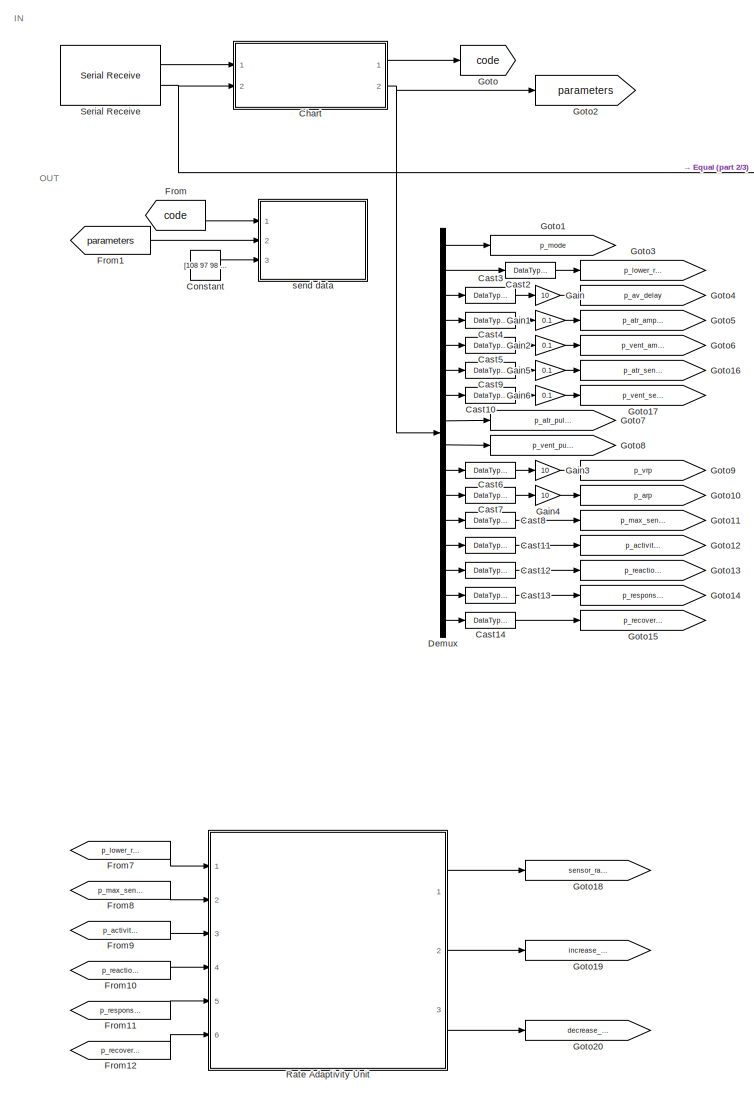
[diagram: root canvas - part 1/3, left side, full height]
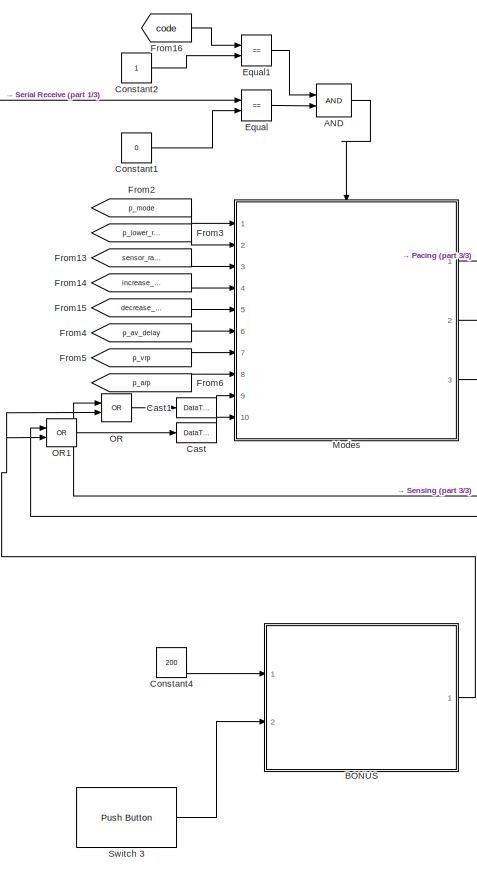
[diagram: root canvas - part 2/3, center side, full height]
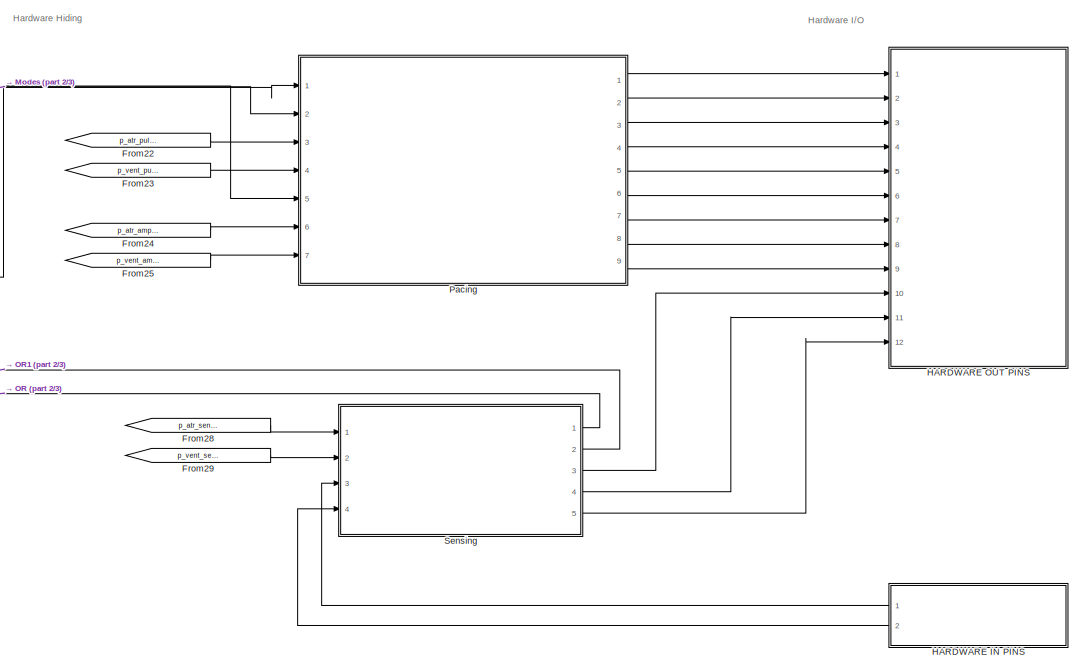
[diagram: root canvas - part 3/3, middle right region]
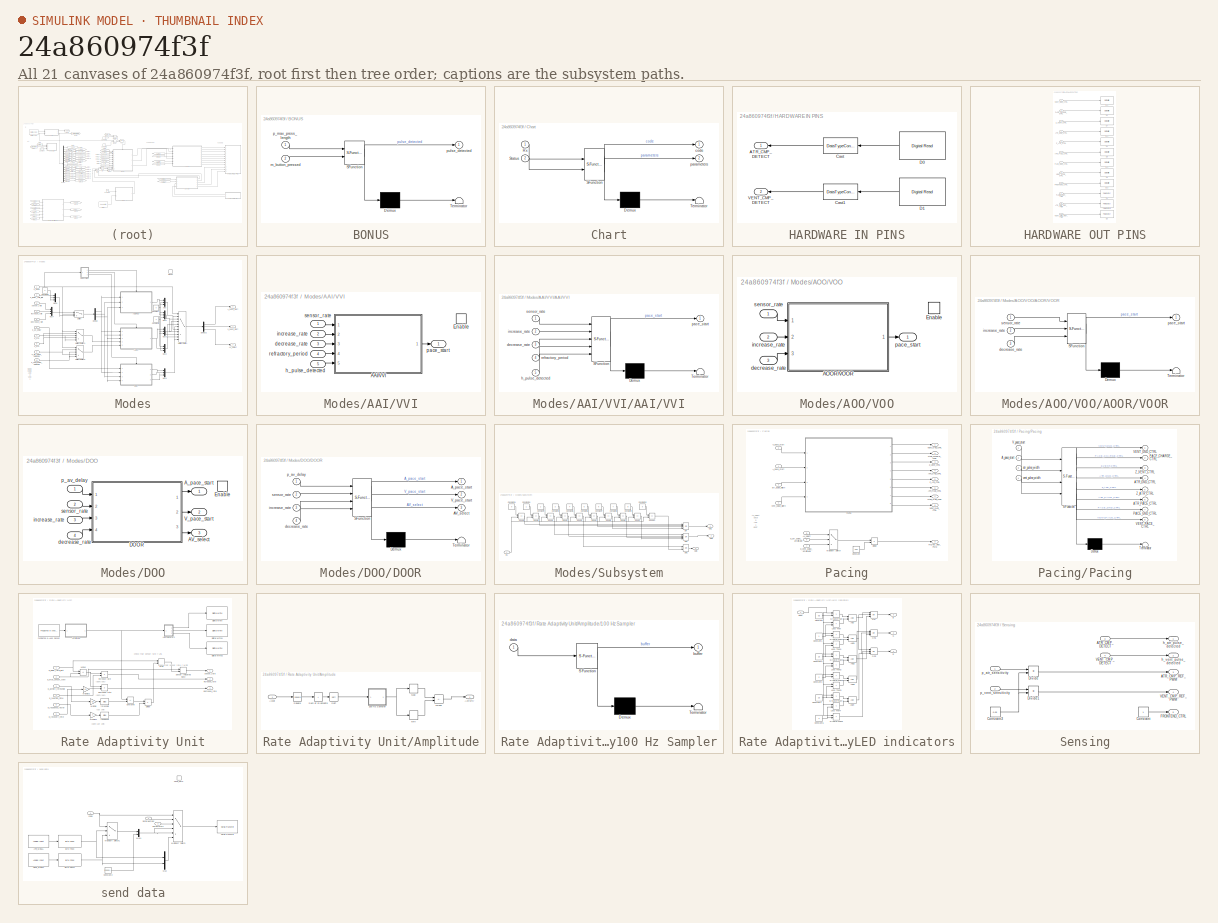
[diagram: thumbnail index - all 21 canvases of the model, root first then tree order]
MODEL slx_24a860974f3f
KIND model
CONFIG AbsTol = auto
CONFIG EnableMultiTasking = on
CONFIG FixedStep = 1e-3
CONFIG MaxStep = auto
CONFIG MinStep = auto
CONFIG RelTol = 1e-3
CONFIG SampleTimeConstraint = Unconstrained
CONFIG Solver = FixedStepAuto
CONFIG SolverName = FixedStepAuto
CONFIG StartTime = 0.0
CONFIG StopTime = 10.0
BLOCK [Logic] AND
  AllPortsSameDT = off
  OutDataTypeStr = boolean
  Ports = [2, 1]
BLOCK [SubSystem] BONUS
  ErrorFcn = Stateflow.Translate.translate
  PermitHierarchicalResolution = ExplicitOnly
  Ports = [2, 1]
  RequestExecContextInheritance = off
  SFBlockType = Chart
  TreatAsAtomicUnit = on
BLOCK [Demux] BONUS/ Demux 
  Outputs = 1
  Ports = [1, 1]
BLOCK [S-Function] BONUS/ SFunction 
  EnableBusSupport = on
  FunctionName = sf_sfun
  PortCounts = [2 2]
  Ports = [2, 2]
  SFcnIsStateOwnerBlock = off
  SFunctionDeploymentMode = off
  Tag = Stateflow S-Function 11
BLOCK [Terminator] BONUS/ Terminator 
BLOCK [Inport] BONUS/m_button_pressed
  Port = 2
BLOCK [Inport] BONUS/p_max_press_length
BLOCK [Outport] BONUS/pulse_detected
BLOCK [DataTypeConversion] Cast
  OutDataTypeStr = uint8
  RndMeth = Floor
  SaturateOnIntegerOverflow = off
BLOCK [DataTypeConversion] Cast1
  OutDataTypeStr = uint8
  RndMeth = Floor
  SaturateOnIntegerOverflow = off
BLOCK [DataTypeConversion] Cast10
  OutDataTypeStr = double
  RndMeth = Floor
  SaturateOnIntegerOverflow = off
BLOCK [DataTypeConversion] Cast11
  OutDataTypeStr = double
  RndMeth = Floor
  SaturateOnIntegerOverflow = off
BLOCK [DataTypeConversion] Cast12
  OutDataTypeStr = double
  RndMeth = Floor
  SaturateOnIntegerOverflow = off
BLOCK [DataTypeConversion] Cast13
  OutDataTypeStr = double
  RndMeth = Floor
  SaturateOnIntegerOverflow = off
BLOCK [DataTypeConversion] Cast14
  OutDataTypeStr = double
  RndMeth = Floor
  SaturateOnIntegerOverflow = off
BLOCK [DataTypeConversion] Cast2
  OutDataTypeStr = double
  RndMeth = Floor
  SaturateOnIntegerOverflow = off
BLOCK [DataTypeConversion] Cast3
  OutDataTypeStr = double
  RndMeth = Floor
  SaturateOnIntegerOverflow = off
BLOCK [DataTypeConversion] Cast4
  OutDataTypeStr = double
  RndMeth = Floor
  SaturateOnIntegerOverflow = off
BLOCK [DataTypeConversion] Cast5
  OutDataTypeStr = double
  RndMeth = Floor
  SaturateOnIntegerOverflow = off
BLOCK [DataTypeConversion] Cast6
  OutDataTypeStr = double
  RndMeth = Floor
  SaturateOnIntegerOverflow = off
BLOCK [DataTypeConversion] Cast7
  OutDataTypeStr = double
  RndMeth = Floor
  SaturateOnIntegerOverflow = off
BLOCK [DataTypeConversion] Cast8
  OutDataTypeStr = double
  RndMeth = Floor
  SaturateOnIntegerOverflow = off
BLOCK [DataTypeConversion] Cast9
  OutDataTypeStr = double
  RndMeth = Floor
  SaturateOnIntegerOverflow = off
BLOCK [SubSystem] Chart
  ErrorFcn = Stateflow.Translate.translate
  PermitHierarchicalResolution = ExplicitOnly
  Ports = [2, 2]
  RequestExecContextInheritance = off
  SFBlockType = Chart
  TreatAsAtomicUnit = on
BLOCK [Demux] Chart/ Demux 
  Outputs = 1
  Ports = [1, 1]
BLOCK [S-Function] Chart/ SFunction 
  EnableBusSupport = on
  FunctionName = sf_sfun
  PortCounts = [2 3]
  Ports = [2, 3]
  SFcnIsStateOwnerBlock = off
  SFunctionDeploymentMode = off
  Tag = Stateflow S-Function 8
BLOCK [Terminator] Chart/ Terminator 
BLOCK [Inport] Chart/Rx
BLOCK [Inport] Chart/Status
  Port = 2
BLOCK [Outport] Chart/code
BLOCK [Outport] Chart/parameters
  Port = 2
BLOCK [Constant] Constant
  OutDataTypeStr = uint8
  Value = [108 97 98 49 45 103 114 111 117 112 56 45 49 48 48 37]
BLOCK [Constant] Constant1
  OutDataTypeStr = uint8
  Value = 0
BLOCK [Constant] Constant2
  OutDataTypeStr = uint8
BLOCK [Constant] Constant4
  Value = 200
BLOCK [Demux] Demux
  Outputs = 16
  Ports = [1, 16]
BLOCK [RelationalOperator] Equal
  InputSameDT = off
  Operator = ==
  OutDataTypeStr = boolean
  Ports = [2, 1]
  RndMeth = Simplest
BLOCK [RelationalOperator] Equal1
  InputSameDT = off
  Operator = ==
  OutDataTypeStr = boolean
  Ports = [2, 1]
  RndMeth = Simplest
BLOCK [From] From
  GotoTag = code
BLOCK [From] From1
  GotoTag = parameters
BLOCK [From] From10
  GotoTag = p_reaction_time
BLOCK [From] From11
  GotoTag = p_response_factor
BLOCK [From] From12
  GotoTag = p_recovery_time
BLOCK [From] From13
  GotoTag = sensor_rate
BLOCK [From] From14
  GotoTag = increase_rate
BLOCK [From] From15
  GotoTag = decrease_rate
BLOCK [From] From16
  GotoTag = code
BLOCK [From] From2
  GotoTag = p_mode
BLOCK [From] From22
  GotoTag = p_atr_pulse_width
BLOCK [From] From23
  GotoTag = p_vent_pulse_width
BLOCK [From] From24
  GotoTag = p_atr_amplitude
BLOCK [From] From25
  GotoTag = p_vent_amplitude
BLOCK [From] From28
  GotoTag = p_atr_sensitivity
BLOCK [From] From29
  GotoTag = p_vent_sensitivity
BLOCK [From] From3
  GotoTag = p_lower_rate_limit
BLOCK [From] From4
  GotoTag = p_av_delay
BLOCK [From] From5
  GotoTag = p_vrp
BLOCK [From] From6
  GotoTag = p_arp
BLOCK [From] From7
  GotoTag = p_lower_rate_limit
BLOCK [From] From8
  GotoTag = p_max_sensor_rate
BLOCK [From] From9
  GotoTag = p_activity_threshold
BLOCK [Gain] Gain
  Gain = 10
BLOCK [Gain] Gain1
  Gain = 0.1
BLOCK [Gain] Gain2
  Gain = 0.1
BLOCK [Gain] Gain3
  Gain = 10
BLOCK [Gain] Gain4
  Gain = 10
BLOCK [Gain] Gain5
  Gain = 0.1
BLOCK [Gain] Gain6
  Gain = 0.1
BLOCK [Goto] Goto
  GotoTag = code
BLOCK [Goto] Goto1
  GotoTag = p_mode
BLOCK [Goto] Goto10
  GotoTag = p_arp
BLOCK [Goto] Goto11
  GotoTag = p_max_sensor_rate
BLOCK [Goto] Goto12
  GotoTag = p_activity_threshold
BLOCK [Goto] Goto13
  GotoTag = p_reaction_time
BLOCK [Goto] Goto14
  GotoTag = p_response_factor
BLOCK [Goto] Goto15
  GotoTag = p_recovery_time
BLOCK [Goto] Goto16
  GotoTag = p_atr_sensitivity
BLOCK [Goto] Goto17
  GotoTag = p_vent_sensitivity
BLOCK [Goto] Goto18
  GotoTag = sensor_rate
BLOCK [Goto] Goto19
  GotoTag = increase_rate
BLOCK [Goto] Goto2
  GotoTag = parameters
BLOCK [Goto] Goto20
  GotoTag = decrease_rate
BLOCK [Goto] Goto3
  GotoTag = p_lower_rate_limit
BLOCK [Goto] Goto4
  GotoTag = p_av_delay
BLOCK [Goto] Goto5
  GotoTag = p_atr_amplitude
BLOCK [Goto] Goto6
  GotoTag = p_vent_amplitude
BLOCK [Goto] Goto7
  GotoTag = p_atr_pulse_width
BLOCK [Goto] Goto8
  GotoTag = p_vent_pulse_width
BLOCK [Goto] Goto9
  GotoTag = p_vrp
BLOCK [SubSystem] HARDWARE IN PINS
  Ports = [0, 2]
  RequestExecContextInheritance = off
BLOCK [Outport] HARDWARE IN PINS/ATR_CMP_DETECT
BLOCK [DataTypeConversion] HARDWARE IN PINS/Cast
  OutDataTypeStr = uint8
  RndMeth = Floor
  SaturateOnIntegerOverflow = off
BLOCK [DataTypeConversion] HARDWARE IN PINS/Cast1
  OutDataTypeStr = uint8
  RndMeth = Floor
  SaturateOnIntegerOverflow = off
BLOCK [Reference] HARDWARE IN PINS/D0  REF=frdmk64flib/Digital Read
  Ports = [0, 1]
  SourceBlock = frdmk64flib/Digital Read
  SourceProductBaseCode = EC_FRDM_K64F
  SourceType = freedomk64f.DigitalRead
BLOCK [Reference] HARDWARE IN PINS/D1  REF=frdmk64flib/Digital Read
  Ports = [0, 1]
  SourceBlock = frdmk64flib/Digital Read
  SourceProductBaseCode = EC_FRDM_K64F
  SourceType = freedomk64f.DigitalRead
BLOCK [Outport] HARDWARE IN PINS/VENT_CMP_DETECT
  Port = 2
BLOCK [SubSystem] HARDWARE OUT PINS
  Ports = [12]
  RequestExecContextInheritance = off
BLOCK [Inport] HARDWARE OUT PINS/ATR_CMP_REF_PWM
  Port = 10
BLOCK [Inport] HARDWARE OUT PINS/ATR_GND_CTRL
  Port = 4
BLOCK [Inport] HARDWARE OUT PINS/ATR_PACE_CTRL
  Port = 6
BLOCK [Reference] HARDWARE OUT PINS/D10  REF=frdmk64flib/Digital Write
  Ports = [1]
  SourceBlock = frdmk64flib/Digital Write
  SourceProductBaseCode = EC_FRDM_K64F
  SourceType = freedomk64f.DigitalWrite
BLOCK [Reference] HARDWARE OUT PINS/D11  REF=frdmk64flib/Digital Write
  Ports = [1]
  SourceBlock = frdmk64flib/Digital Write
  SourceProductBaseCode = EC_FRDM_K64F
  SourceType = freedomk64f.DigitalWrite
BLOCK [Reference] HARDWARE OUT PINS/D12  REF=frdmk64flib/Digital Write
  Ports = [1]
  SourceBlock = frdmk64flib/Digital Write
  SourceProductBaseCode = EC_FRDM_K64F
  SourceType = freedomk64f.DigitalWrite
BLOCK [Reference] HARDWARE OUT PINS/D13  REF=frdmk64flib/Digital Write
  Ports = [1]
  SourceBlock = frdmk64flib/Digital Write
  SourceProductBaseCode = EC_FRDM_K64F
  SourceType = freedomk64f.DigitalWrite
BLOCK [Reference] HARDWARE OUT PINS/D2  REF=frdmk64flib/Digital Write
  Ports = [1]
  SourceBlock = frdmk64flib/Digital Write
  SourceProductBaseCode = EC_FRDM_K64F
  SourceType = freedomk64f.DigitalWrite
BLOCK [Reference] HARDWARE OUT PINS/D3  REF=frdmk64flib/PWM Output
  Ports = [1]
  SourceBlock = frdmk64flib/PWM Output
  SourceProductBaseCode = EC_FRDM_K64F
  SourceType = freedomk64f.PWMOutput
BLOCK [Reference] HARDWARE OUT PINS/D4  REF=frdmk64flib/Digital Write
  Ports = [1]
  SourceBlock = frdmk64flib/Digital Write
  SourceProductBaseCode = EC_FRDM_K64F
  SourceType = freedomk64f.DigitalWrite
BLOCK [Reference] HARDWARE OUT PINS/D5  REF=frdmk64flib/PWM Output
  Ports = [1]
  SourceBlock = frdmk64flib/PWM Output
  SourceProductBaseCode = EC_FRDM_K64F
  SourceType = freedomk64f.PWMOutput
BLOCK [Reference] HARDWARE OUT PINS/D7  REF=frdmk64flib/Digital Write
  Ports = [1]
  SourceBlock = frdmk64flib/Digital Write
  SourceProductBaseCode = EC_FRDM_K64F
  SourceType = freedomk64f.DigitalWrite
BLOCK [Reference] HARDWARE OUT PINS/D8  REF=frdmk64flib/Digital Write
  Ports = [1]
  SourceBlock = frdmk64flib/Digital Write
  SourceProductBaseCode = EC_FRDM_K64F
  SourceType = freedomk64f.DigitalWrite
BLOCK [Reference] HARDWARE OUT PINS/D9  REF=frdmk64flib/Digital Write
  Ports = [1]
  SourceBlock = frdmk64flib/Digital Write
  SourceProductBaseCode = EC_FRDM_K64F
  SourceType = freedomk64f.DigitalWrite
BLOCK [Inport] HARDWARE OUT PINS/FRONTEND_CTRL
  Port = 12
BLOCK [Inport] HARDWARE OUT PINS/PACE_CHARGE_CTRL
  Port = 2
BLOCK [Inport] HARDWARE OUT PINS/PACE_GND_CTRL
  Port = 7
BLOCK [Inport] HARDWARE OUT PINS/PACING_REF_PWM
  Port = 9
BLOCK [Reference] HARDWARE OUT PINS/PWM Output1  REF=frdmk64flib/PWM Output
  Ports = [1]
  SourceBlock = frdmk64flib/PWM Output
  SourceProductBaseCode = EC_FRDM_K64F
  SourceType = freedomk64f.PWMOutput
BLOCK [Inport] HARDWARE OUT PINS/VENT_CMP_REF_PWM
  Port = 11
BLOCK [Inport] HARDWARE OUT PINS/VENT_GND_CTRL
BLOCK [Inport] HARDWARE OUT PINS/VENT_PACE_CTRL
  Port = 8
BLOCK [Inport] HARDWARE OUT PINS/Z_ATR_CTRL
  Port = 5
BLOCK [Inport] HARDWARE OUT PINS/Z_VENT_CTRL
  Port = 3
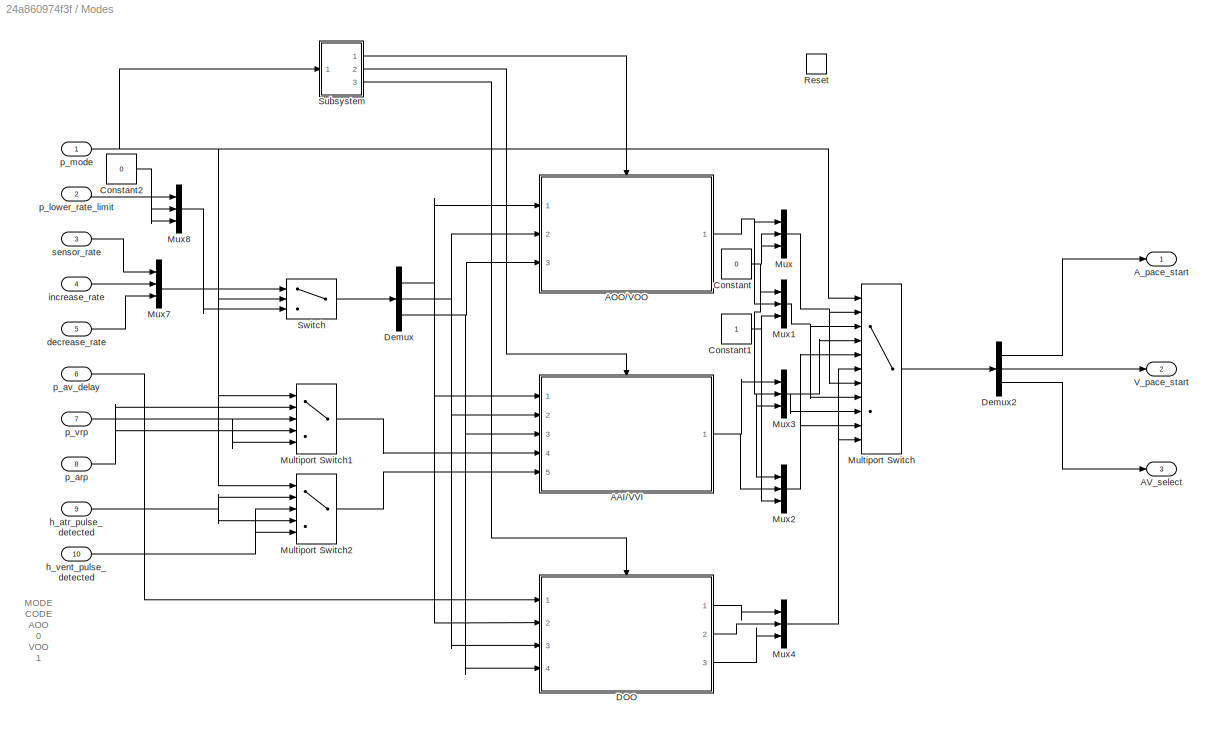
BLOCK [SubSystem] Modes
  Ports = [10, 3, 0, 0, 0, 0, 0, 0, 1]
  RequestExecContextInheritance = off
BLOCK [SubSystem] Modes/AAI//VVI
  Ports = [5, 1, 1]
  RequestExecContextInheritance = off
BLOCK [SubSystem] Modes/AAI//VVI/AAI//VVI
  ErrorFcn = Stateflow.Translate.translate
  PermitHierarchicalResolution = ExplicitOnly
  Ports = [5, 1]
  RequestExecContextInheritance = off
  SFBlockType = Chart
  TreatAsAtomicUnit = on
BLOCK [Demux] Modes/AAI//VVI/AAI//VVI/ Demux 
  Outputs = 1
  Ports = [1, 1]
BLOCK [S-Function] Modes/AAI//VVI/AAI//VVI/ SFunction 
  EnableBusSupport = on
  FunctionName = sf_sfun
  PortCounts = [5 2]
  Ports = [5, 2]
  SFcnIsStateOwnerBlock = off
  SFunctionDeploymentMode = off
  Tag = Stateflow S-Function 5
BLOCK [Terminator] Modes/AAI//VVI/AAI//VVI/ Terminator 
BLOCK [Inport] Modes/AAI//VVI/AAI//VVI/decrease_rate
  Port = 3
BLOCK [Inport] Modes/AAI//VVI/AAI//VVI/h_pulse_detected
  Port = 5
BLOCK [Inport] Modes/AAI//VVI/AAI//VVI/increase_rate
  Port = 2
BLOCK [Outport] Modes/AAI//VVI/AAI//VVI/pace_start
BLOCK [Inport] Modes/AAI//VVI/AAI//VVI/refractory_period
  Port = 4
BLOCK [Inport] Modes/AAI//VVI/AAI//VVI/sensor_rate
BLOCK [EnablePort] Modes/AAI//VVI/Enable
  Ports = []
  StatesWhenEnabling = reset
BLOCK [Inport] Modes/AAI//VVI/decrease_rate
  Port = 3
BLOCK [Inport] Modes/AAI//VVI/h_pulse_detected
  Port = 5
BLOCK [Inport] Modes/AAI//VVI/increase_rate
  Port = 2
BLOCK [Outport] Modes/AAI//VVI/pace_start
BLOCK [Inport] Modes/AAI//VVI/refractory_period
  Port = 4
BLOCK [Inport] Modes/AAI//VVI/sensor_rate
BLOCK [SubSystem] Modes/AOO//VOO
  Ports = [3, 1, 1]
  RequestExecContextInheritance = off
BLOCK [SubSystem] Modes/AOO//VOO/AOOR//VOOR
  ErrorFcn = Stateflow.Translate.translate
  PermitHierarchicalResolution = ExplicitOnly
  Ports = [3, 1]
  RequestExecContextInheritance = off
  SFBlockType = Chart
  TreatAsAtomicUnit = on
BLOCK [Demux] Modes/AOO//VOO/AOOR//VOOR/ Demux 
  Outputs = 1
  Ports = [1, 1]
BLOCK [S-Function] Modes/AOO//VOO/AOOR//VOOR/ SFunction 
  EnableBusSupport = on
  FunctionName = sf_sfun
  PortCounts = [3 2]
  Ports = [3, 2]
  SFcnIsStateOwnerBlock = off
  SFunctionDeploymentMode = off
  Tag = Stateflow S-Function 4
BLOCK [Terminator] Modes/AOO//VOO/AOOR//VOOR/ Terminator 
BLOCK [Inport] Modes/AOO//VOO/AOOR//VOOR/decrease_rate
  Port = 3
BLOCK [Inport] Modes/AOO//VOO/AOOR//VOOR/increase_rate
  Port = 2
BLOCK [Outport] Modes/AOO//VOO/AOOR//VOOR/pace_start
BLOCK [Inport] Modes/AOO//VOO/AOOR//VOOR/sensor_rate
BLOCK [EnablePort] Modes/AOO//VOO/Enable
  Ports = []
  StatesWhenEnabling = reset
BLOCK [Inport] Modes/AOO//VOO/decrease_rate
  Port = 3
BLOCK [Inport] Modes/AOO//VOO/increase_rate
  Port = 2
BLOCK [Outport] Modes/AOO//VOO/pace_start
BLOCK [Inport] Modes/AOO//VOO/sensor_rate
BLOCK [Outport] Modes/AV_select
  Port = 3
BLOCK [Outport] Modes/A_pace_start
BLOCK [Constant] Modes/Constant
  OutDataTypeStr = boolean
  Value = 0
BLOCK [Constant] Modes/Constant1
  OutDataTypeStr = boolean
BLOCK [Constant] Modes/Constant2
  OutDataTypeStr = double
  Value = 0
BLOCK [SubSystem] Modes/DOO
  Ports = [4, 3, 1]
  RequestExecContextInheritance = off
BLOCK [Outport] Modes/DOO/AV_select
  Port = 3
BLOCK [Outport] Modes/DOO/A_pace_start
BLOCK [SubSystem] Modes/DOO/DOOR
  ErrorFcn = Stateflow.Translate.translate
  PermitHierarchicalResolution = ExplicitOnly
  Ports = [4, 3]
  RequestExecContextInheritance = off
  SFBlockType = Chart
  TreatAsAtomicUnit = on
BLOCK [Demux] Modes/DOO/DOOR/ Demux 
  Outputs = 1
  Ports = [1, 1]
BLOCK [S-Function] Modes/DOO/DOOR/ SFunction 
  EnableBusSupport = on
  FunctionName = sf_sfun
  PortCounts = [4 4]
  Ports = [4, 4]
  SFcnIsStateOwnerBlock = off
  SFunctionDeploymentMode = off
  Tag = Stateflow S-Function 6
BLOCK [Terminator] Modes/DOO/DOOR/ Terminator 
BLOCK [Outport] Modes/DOO/DOOR/AV_select
  Port = 3
BLOCK [Outport] Modes/DOO/DOOR/A_pace_start
BLOCK [Outport] Modes/DOO/DOOR/V_pace_start
  Port = 2
BLOCK [Inport] Modes/DOO/DOOR/decrease_rate
  Port = 4
BLOCK [Inport] Modes/DOO/DOOR/increase_rate
  Port = 3
BLOCK [Inport] Modes/DOO/DOOR/p_av_delay
BLOCK [Inport] Modes/DOO/DOOR/sensor_rate
  Port = 2
BLOCK [EnablePort] Modes/DOO/Enable
  Ports = []
  StatesWhenEnabling = reset
BLOCK [Outport] Modes/DOO/V_pace_start
  Port = 2
BLOCK [Inport] Modes/DOO/decrease_rate
  Port = 4
BLOCK [Inport] Modes/DOO/increase_rate
  Port = 3
BLOCK [Inport] Modes/DOO/p_av_delay
BLOCK [Inport] Modes/DOO/sensor_rate
  Port = 2
BLOCK [Demux] Modes/Demux
  Outputs = 3
  Ports = [1, 3]
BLOCK [Demux] Modes/Demux2
  Outputs = 3
  Ports = [1, 3]
BLOCK [MultiPortSwitch] Modes/Multiport Switch
  DataPortOrder = Zero-based contiguous
  InputSameDT = off
  Inputs = 10
  Ports = [11, 1]
  SaturateOnIntegerOverflow = off
  zeroidx = on
BLOCK [MultiPortSwitch] Modes/Multiport Switch1
  DataPortIndices = {2,3,7,8}
  DataPortOrder = Specify indices
  DiagnosticForDefault = None
  InputSameDT = off
  Inputs = 10
  Ports = [5, 1]
  SaturateOnIntegerOverflow = off
BLOCK [MultiPortSwitch] Modes/Multiport Switch2
  DataPortIndices = {2,3,7,8}
  DataPortOrder = Specify indices
  DiagnosticForDefault = None
  InputSameDT = off
  Inputs = 10
  Ports = [5, 1]
  SaturateOnIntegerOverflow = off
BLOCK [Mux] Modes/Mux
  DisplayOption = bar
  Inputs = 3
  Ports = [3, 1]
BLOCK [Mux] Modes/Mux1
  DisplayOption = bar
  Inputs = 3
  Ports = [3, 1]
BLOCK [Mux] Modes/Mux2
  DisplayOption = bar
  Inputs = 3
  Ports = [3, 1]
BLOCK [Mux] Modes/Mux3
  DisplayOption = bar
  Inputs = 3
  Ports = [3, 1]
BLOCK [Mux] Modes/Mux4
  DisplayOption = bar
  Inputs = 3
  Ports = [3, 1]
BLOCK [Mux] Modes/Mux7
  DisplayOption = bar
  Inputs = 3
  Ports = [3, 1]
BLOCK [Mux] Modes/Mux8
  DisplayOption = bar
  Inputs = 3
  Ports = [3, 1]
BLOCK [ResetPort] Modes/Reset
  DisableCoverage = on
BLOCK [SubSystem] Modes/Subsystem
  Ports = [1, 3]
  RequestExecContextInheritance = off
BLOCK [Constant] Modes/Subsystem/Constant10
  OutDataTypeStr = uint8
BLOCK [Constant] Modes/Subsystem/Constant11
  OutDataTypeStr = uint8
  Value = 0
BLOCK [Constant] Modes/Subsystem/Constant12
  OutDataTypeStr = uint8
  Value = 9
BLOCK [Constant] Modes/Subsystem/Constant3
  OutDataTypeStr = uint8
  Value = 3
BLOCK [Constant] Modes/Subsystem/Constant4
  OutDataTypeStr = uint8
  Value = 2
BLOCK [Constant] Modes/Subsystem/Constant5
  OutDataTypeStr = uint8
  Value = 4
BLOCK [Constant] Modes/Subsystem/Constant6
  OutDataTypeStr = uint8
  Value = 5
BLOCK [Constant] Modes/Subsystem/Constant7
  OutDataTypeStr = uint8
  Value = 6
BLOCK [Constant] Modes/Subsystem/Constant8
  OutDataTypeStr = uint8
  Value = 7
BLOCK [Constant] Modes/Subsystem/Constant9
  OutDataTypeStr = uint8
  Value = 8
BLOCK [RelationalOperator] Modes/Subsystem/Equal1
  InputSameDT = off
  Operator = ==
  OutDataTypeStr = boolean
  Ports = [2, 1]
  RndMeth = Simplest
BLOCK [RelationalOperator] Modes/Subsystem/Equal10
  InputSameDT = off
  Operator = ==
  OutDataTypeStr = boolean
  Ports = [2, 1]
  RndMeth = Simplest
BLOCK [RelationalOperator] Modes/Subsystem/Equal2
  InputSameDT = off
  Operator = ==
  OutDataTypeStr = boolean
  Ports = [2, 1]
  RndMeth = Simplest
BLOCK [RelationalOperator] Modes/Subsystem/Equal3
  InputSameDT = off
  Operator = ==
  OutDataTypeStr = boolean
  Ports = [2, 1]
  RndMeth = Simplest
BLOCK [RelationalOperator] Modes/Subsystem/Equal4
  InputSameDT = off
  Operator = ==
  OutDataTypeStr = boolean
  Ports = [2, 1]
  RndMeth = Simplest
BLOCK [RelationalOperator] Modes/Subsystem/Equal5
  InputSameDT = off
  Operator = ==
  OutDataTypeStr = boolean
  Ports = [2, 1]
  RndMeth = Simplest
BLOCK [RelationalOperator] Modes/Subsystem/Equal6
  InputSameDT = off
  Operator = ==
  OutDataTypeStr = boolean
  Ports = [2, 1]
  RndMeth = Simplest
BLOCK [RelationalOperator] Modes/Subsystem/Equal7
  InputSameDT = off
  Operator = ==
  OutDataTypeStr = boolean
  Ports = [2, 1]
  RndMeth = Simplest
BLOCK [RelationalOperator] Modes/Subsystem/Equal8
  InputSameDT = off
  Operator = ==
  OutDataTypeStr = boolean
  Ports = [2, 1]
  RndMeth = Simplest
BLOCK [RelationalOperator] Modes/Subsystem/Equal9
  InputSameDT = off
  Operator = ==
  OutDataTypeStr = boolean
  Ports = [2, 1]
  RndMeth = Simplest
BLOCK [Inport] Modes/Subsystem/In1
BLOCK [Logic] Modes/Subsystem/OR
  AllPortsSameDT = off
  Inputs = 4
  Operator = OR
  OutDataTypeStr = boolean
  Ports = [4, 1]
BLOCK [Logic] Modes/Subsystem/OR1
  AllPortsSameDT = off
  Inputs = 4
  Operator = OR
  OutDataTypeStr = boolean
  Ports = [4, 1]
BLOCK [Logic] Modes/Subsystem/OR2
  AllPortsSameDT = off
  Operator = OR
  OutDataTypeStr = boolean
  Ports = [2, 1]
BLOCK [Outport] Modes/Subsystem/Out1
BLOCK [Outport] Modes/Subsystem/Out2
  Port = 2
BLOCK [Outport] Modes/Subsystem/Out3
  Port = 3
BLOCK [Switch] Modes/Switch
  Criteria = u2 > Threshold
  InputSameDT = off
  SaturateOnIntegerOverflow = off
  Threshold = 4
BLOCK [Outport] Modes/V_pace_start
  Port = 2
BLOCK [Inport] Modes/decrease_rate
  Port = 5
BLOCK [Inport] Modes/h_atr_pulse_detected
  Port = 9
BLOCK [Inport] Modes/h_vent_pulse_detected
  Port = 10
BLOCK [Inport] Modes/increase_rate
  Port = 4
BLOCK [Inport] Modes/p_arp
  Port = 8
BLOCK [Inport] Modes/p_av_delay
  Port = 6
BLOCK [Inport] Modes/p_lower_rate_limit
  Port = 2
BLOCK [Inport] Modes/p_mode
  OutDataTypeStr = uint8
BLOCK [Inport] Modes/p_vrp
  Port = 7
BLOCK [Inport] Modes/sensor_rate
  Port = 3
BLOCK [Logic] OR
  AllPortsSameDT = off
  IconShape = distinctive
  Operator = OR
  OutDataTypeStr = boolean
  Ports = [2, 1]
BLOCK [Logic] OR1
  AllPortsSameDT = off
  IconShape = distinctive
  Operator = OR
  OutDataTypeStr = boolean
  Ports = [2, 1]
BLOCK [SubSystem] Pacing
  Ports = [7, 9]
  RequestExecContextInheritance = off
BLOCK [Outport] Pacing/ATR_GND_CTRL
  Port = 4
BLOCK [Outport] Pacing/ATR_PACE_CTRL
  Port = 6
BLOCK [Inport] Pacing/AV_select
  Port = 5
BLOCK [Inport] Pacing/A_pace_start
BLOCK [Constant] Pacing/Constant
  Value = 0.05
BLOCK [Product] Pacing/Divide
  Inputs = */
  Ports = [2, 1]
BLOCK [MultiPortSwitch] Pacing/Multiport Switch
  DataPortOrder = Zero-based contiguous
  DiagnosticForDefault = None
  InputSameDT = off
  Inputs = 2
  Ports = [3, 1]
  SaturateOnIntegerOverflow = off
  zeroidx = on
BLOCK [Outport] Pacing/PACE_CHARGE_CTRL
  Port = 2
BLOCK [Outport] Pacing/PACE_GND_CTRL
  Port = 7
BLOCK [Outport] Pacing/PACING_REF_PWM
  Port = 9
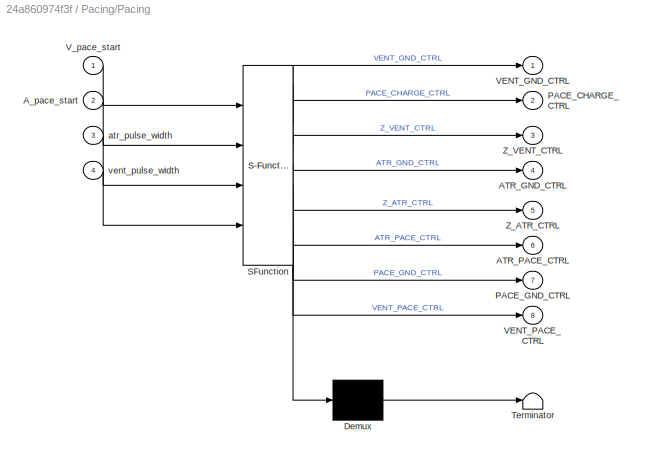
BLOCK [SubSystem] Pacing/Pacing
  ErrorFcn = Stateflow.Translate.translate
  PermitHierarchicalResolution = ExplicitOnly
  Ports = [4, 8]
  RequestExecContextInheritance = off
  SFBlockType = Chart
  TreatAsAtomicUnit = on
BLOCK [Demux] Pacing/Pacing/ Demux 
  Outputs = 1
  Ports = [1, 1]
BLOCK [S-Function] Pacing/Pacing/ SFunction 
  EnableBusSupport = on
  FunctionName = sf_sfun
  PortCounts = [4 9]
  Ports = [4, 9]
  SFcnIsStateOwnerBlock = off
  SFunctionDeploymentMode = off
  Tag = Stateflow S-Function 12
BLOCK [Terminator] Pacing/Pacing/ Terminator 
BLOCK [Outport] Pacing/Pacing/ATR_GND_CTRL
  Port = 4
BLOCK [Outport] Pacing/Pacing/ATR_PACE_CTRL
  Port = 6
BLOCK [Inport] Pacing/Pacing/A_pace_start
  Port = 2
BLOCK [Outport] Pacing/Pacing/PACE_CHARGE_CTRL
  Port = 2
BLOCK [Outport] Pacing/Pacing/PACE_GND_CTRL
  Port = 7
BLOCK [Outport] Pacing/Pacing/VENT_GND_CTRL
BLOCK [Outport] Pacing/Pacing/VENT_PACE_CTRL
  Port = 8
BLOCK [Inport] Pacing/Pacing/V_pace_start
BLOCK [Outport] Pacing/Pacing/Z_ATR_CTRL
  Port = 5
BLOCK [Outport] Pacing/Pacing/Z_VENT_CTRL
  Port = 3
BLOCK [Inport] Pacing/Pacing/atr_pulse_width
  Port = 3
BLOCK [Inport] Pacing/Pacing/vent_pulse_width
  Port = 4
BLOCK [Outport] Pacing/VENT_GND_CTRL
BLOCK [Outport] Pacing/VENT_PACE_CTRL
  Port = 8
BLOCK [Inport] Pacing/V_pace_start
  Port = 2
BLOCK [Outport] Pacing/Z_ATR_CTRL
  Port = 5
BLOCK [Outport] Pacing/Z_VENT_CTRL
  Port = 3
BLOCK [Inport] Pacing/atr_pulse_width
  Port = 3
BLOCK [Inport] Pacing/p_atr_pulse_amplitude
  Port = 6
BLOCK [Inport] Pacing/p_vent_pulse_amplitude
  Port = 7
BLOCK [Inport] Pacing/vent_pulse_width
  Port = 4
BLOCK [SubSystem] Rate Adaptivity Unit
  Ports = [6, 3]
  RequestExecContextInheritance = off
BLOCK [SubSystem] Rate Adaptivity Unit/Amplitude
  Ports = [1, 1]
  RequestExecContextInheritance = off
BLOCK [SubSystem] Rate Adaptivity Unit/Amplitude/100 Hz Sampler
  ErrorFcn = Stateflow.Translate.translate
  PermitHierarchicalResolution = ExplicitOnly
  Ports = [1, 1]
  RequestExecContextInheritance = off
  SFBlockType = Chart
  TreatAsAtomicUnit = on
BLOCK [Demux] Rate Adaptivity Unit/Amplitude/100 Hz Sampler/ Demux 
  Outputs = 1
  Ports = [1, 1]
BLOCK [S-Function] Rate Adaptivity Unit/Amplitude/100 Hz Sampler/ SFunction 
  EnableBusSupport = on
  FunctionName = sf_sfun
  PortCounts = [1 2]
  Ports = [1, 2]
  SFcnIsStateOwnerBlock = off
  SFunctionDeploymentMode = off
  Tag = Stateflow S-Function 10
BLOCK [Terminator] Rate Adaptivity Unit/Amplitude/100 Hz Sampler/ Terminator 
BLOCK [Outport] Rate Adaptivity Unit/Amplitude/100 Hz Sampler/buffer
BLOCK [Inport] Rate Adaptivity Unit/Amplitude/100 Hz Sampler/data
BLOCK [Inport] Rate Adaptivity Unit/Amplitude/Accel
BLOCK [Outport] Rate Adaptivity Unit/Amplitude/Activity
BLOCK [MinMax] Rate Adaptivity Unit/Amplitude/Max
  Function = max
  Ports = [1, 1]
BLOCK [MinMax] Rate Adaptivity Unit/Amplitude/Min
  Ports = [1, 1]
BLOCK [Sum] Rate Adaptivity Unit/Amplitude/Minus
  IconShape = rectangular
  Inputs = +-
  Ports = [2, 1]
BLOCK [Sqrt] Rate Adaptivity Unit/Amplitude/Sqrt
BLOCK [Math] Rate Adaptivity Unit/Amplitude/Square
  Operator = square
  Ports = [1, 1]
BLOCK [Sum] Rate Adaptivity Unit/Amplitude/Sum of Elements
  IconShape = rectangular
  Inputs = +
  Ports = [1, 1]
BLOCK [Reference] Rate Adaptivity Unit/Digital Write  REF=frdmk64flib/Digital Write
  Ports = [1]
  SourceBlock = frdmk64flib/Digital Write
  SourceProductBaseCode = EC_FRDM_K64F
  SourceType = freedomk64f.DigitalWrite
BLOCK [Reference] Rate Adaptivity Unit/Digital Write1  REF=frdmk64flib/Digital Write
  Ports = [1]
  SourceBlock = frdmk64flib/Digital Write
  SourceProductBaseCode = EC_FRDM_K64F
  SourceType = freedomk64f.DigitalWrite
BLOCK [Reference] Rate Adaptivity Unit/Digital Write2  REF=frdmk64flib/Digital Write
  Ports = [1]
  SourceBlock = frdmk64flib/Digital Write
  SourceProductBaseCode = EC_FRDM_K64F
  SourceType = freedomk64f.DigitalWrite
BLOCK [Product] Rate Adaptivity Unit/Divide
  Inputs = **
  Ports = [2, 1]
BLOCK [Reference] Rate Adaptivity Unit/FXOS8700 6-Axes Sensor  REF=frdmk64flib/FXOS8700 6-Axes Sensor
  Ports = [0, 1]
  SourceBlock = frdmk64flib/FXOS8700 6-Axes Sensor
  SourceProductBaseCode = EC_FRDM_K64F
  SourceType = freedomk64f.fxos8700
BLOCK [SubSystem] Rate Adaptivity Unit/LED indicators
  Ports = [1, 3]
  RequestExecContextInheritance = off
BLOCK [Logic] Rate Adaptivity Unit/LED indicators/AND
  AllPortsSameDT = off
  IconShape = distinctive
  OutDataTypeStr = boolean
  Ports = [2, 1]
BLOCK [Logic] Rate Adaptivity Unit/LED indicators/AND1
  AllPortsSameDT = off
  IconShape = distinctive
  OutDataTypeStr = boolean
  Ports = [2, 1]
BLOCK [Logic] Rate Adaptivity Unit/LED indicators/AND2
  AllPortsSameDT = off
  IconShape = distinctive
  OutDataTypeStr = boolean
  Ports = [2, 1]
BLOCK [Logic] Rate Adaptivity Unit/LED indicators/AND3
  AllPortsSameDT = off
  IconShape = distinctive
  OutDataTypeStr = boolean
  Ports = [2, 1]
BLOCK [Logic] Rate Adaptivity Unit/LED indicators/AND4
  AllPortsSameDT = off
  IconShape = distinctive
  OutDataTypeStr = boolean
  Ports = [2, 1]
BLOCK [Outport] Rate Adaptivity Unit/LED indicators/B
  Port = 3
BLOCK [Constant] Rate Adaptivity Unit/LED indicators/Constant
  Value = 0.5
BLOCK [Constant] Rate Adaptivity Unit/LED indicators/Constant1
BLOCK [Constant] Rate Adaptivity Unit/LED indicators/Constant2
  Value = 1.5
BLOCK [Constant] Rate Adaptivity Unit/LED indicators/Constant3
  Value = 2
BLOCK [Constant] Rate Adaptivity Unit/LED indicators/Constant4
  Value = 2.5
BLOCK [Constant] Rate Adaptivity Unit/LED indicators/Constant5
  Value = 3
BLOCK [Outport] Rate Adaptivity Unit/LED indicators/G
  Port = 2
BLOCK [RelationalOperator] Rate Adaptivity Unit/LED indicators/GreaterThan
  InputSameDT = off
  Operator = >
  OutDataTypeStr = boolean
  Ports = [2, 1]
  RndMeth = Simplest
BLOCK [RelationalOperator] Rate Adaptivity Unit/LED indicators/GreaterThan1
  InputSameDT = off
  Operator = >
  OutDataTypeStr = boolean
  Ports = [2, 1]
  RndMeth = Simplest
BLOCK [RelationalOperator] Rate Adaptivity Unit/LED indicators/GreaterThan2
  InputSameDT = off
  Operator = >
  OutDataTypeStr = boolean
  Ports = [2, 1]
  RndMeth = Simplest
BLOCK [RelationalOperator] Rate Adaptivity Unit/LED indicators/GreaterThan3
  InputSameDT = off
  Operator = >
  OutDataTypeStr = boolean
  Ports = [2, 1]
  RndMeth = Simplest
BLOCK [RelationalOperator] Rate Adaptivity Unit/LED indicators/GreaterThan4
  InputSameDT = off
  Operator = >
  OutDataTypeStr = boolean
  Ports = [2, 1]
  RndMeth = Simplest
BLOCK [RelationalOperator] Rate Adaptivity Unit/LED indicators/GreaterThan5
  InputSameDT = off
  Operator = >
  OutDataTypeStr = boolean
  Ports = [2, 1]
  RndMeth = Simplest
BLOCK [RelationalOperator] Rate Adaptivity Unit/LED indicators/Less Than
  InputSameDT = off
  Operator = <
  OutDataTypeStr = boolean
  Ports = [2, 1]
  RndMeth = Simplest
BLOCK [RelationalOperator] Rate Adaptivity Unit/LED indicators/Less Than1
  InputSameDT = off
  Operator = <
  OutDataTypeStr = boolean
  Ports = [2, 1]
  RndMeth = Simplest
BLOCK [RelationalOperator] Rate Adaptivity Unit/LED indicators/Less Than2
  InputSameDT = off
  Operator = <
  OutDataTypeStr = boolean
  Ports = [2, 1]
  RndMeth = Simplest
BLOCK [RelationalOperator] Rate Adaptivity Unit/LED indicators/Less Than3
  InputSameDT = off
  Operator = <
  OutDataTypeStr = boolean
  Ports = [2, 1]
  RndMeth = Simplest
BLOCK [RelationalOperator] Rate Adaptivity Unit/LED indicators/Less Than4
  InputSameDT = off
  Operator = <
  OutDataTypeStr = boolean
  Ports = [2, 1]
  RndMeth = Simplest
BLOCK [Logic] Rate Adaptivity Unit/LED indicators/OR
  AllPortsSameDT = off
  IconShape = distinctive
  Inputs = 3
  Operator = OR
  OutDataTypeStr = boolean
  Ports = [3, 1]
BLOCK [Logic] Rate Adaptivity Unit/LED indicators/OR1
  AllPortsSameDT = off
  IconShape = distinctive
  Inputs = 3
  Operator = OR
  OutDataTypeStr = boolean
  Ports = [3, 1]
BLOCK [Logic] Rate Adaptivity Unit/LED indicators/OR2
  AllPortsSameDT = off
  IconShape = distinctive
  Inputs = 3
  Operator = OR
  OutDataTypeStr = boolean
  Ports = [3, 1]
BLOCK [Outport] Rate Adaptivity Unit/LED indicators/R
BLOCK [Inport] Rate Adaptivity Unit/LED indicators/input
BLOCK [MinMax] Rate Adaptivity Unit/Max
  Function = max
  Inputs = 2
  Ports = [2, 1]
BLOCK [Sum] Rate Adaptivity Unit/Minus
  IconShape = rectangular
  Inputs = -+
  Ports = [2, 1]
BLOCK [Gain] Rate Adaptivity Unit/Multiply
  Gain = 0.5
BLOCK [Gain] Rate Adaptivity Unit/Multiply1
  Gain = 4
BLOCK [Gain] Rate Adaptivity Unit/Multiply2
  Gain = 60
BLOCK [Sum] Rate Adaptivity Unit/Overdrive
  IconShape = rectangular
  Inputs = +-
  Ports = [2, 1]
BLOCK [MinMax] Rate Adaptivity Unit/Sensor Indicated Rate
  Inputs = 2
  Ports = [2, 1]
BLOCK [Product] Rate Adaptivity Unit/decrease rate
  Inputs = */
  Ports = [2, 1]
BLOCK [Outport] Rate Adaptivity Unit/decrease_rate
  Port = 3
BLOCK [Product] Rate Adaptivity Unit/increase rate
  Inputs = */
  Ports = [2, 1]
BLOCK [Outport] Rate Adaptivity Unit/increase_rate
  Port = 2
BLOCK [Inport] Rate Adaptivity Unit/p_activity_threshold
  Port = 3
BLOCK [Inport] Rate Adaptivity Unit/p_lower_rate_limit
BLOCK [Inport] Rate Adaptivity Unit/p_max_sensor_rate
  Port = 2
BLOCK [Inport] Rate Adaptivity Unit/p_reaction_time
  Port = 4
BLOCK [Inport] Rate Adaptivity Unit/p_recovery_time
  Port = 6
BLOCK [Inport] Rate Adaptivity Unit/p_response_factor
  Port = 5
BLOCK [Bias] Rate Adaptivity Unit/response
  SaturateOnIntegerOverflow = off
BLOCK [Outport] Rate Adaptivity Unit/sensor_rate
BLOCK [Bias] Rate Adaptivity Unit/threshold
  Bias = 0.5
  SaturateOnIntegerOverflow = off
BLOCK [SubSystem] Sensing
  Ports = [4, 5]
  RequestExecContextInheritance = off
BLOCK [Inport] Sensing/ATR_CMP_DETECT
  Port = 3
BLOCK [Outport] Sensing/ATR_CMP_REF_PWM
  Port = 3
BLOCK [Constant] Sensing/Constant
  OutDataTypeStr = boolean
BLOCK [Constant] Sensing/Constant3
  Value = 0.05
BLOCK [Product] Sensing/Divide
  Inputs = */
  Ports = [2, 1]
BLOCK [Product] Sensing/Divide1
  Inputs = */
  Ports = [2, 1]
BLOCK [Outport] Sensing/FRONTEND_CTRL
  Port = 5
BLOCK [Inport] Sensing/VENT_CMP_DETECT
  Port = 4
BLOCK [Outport] Sensing/VENT_CMP_REF_PWM
  Port = 4
BLOCK [Outport] Sensing/h_atr_pulse_detected
BLOCK [Outport] Sensing/h_vent_pulse_detected
  Port = 2
BLOCK [Inport] Sensing/p_atr_sensitivity
BLOCK [Inport] Sensing/p_vent_sensitivity
  Port = 2
BLOCK [Reference] Serial Receive  REF=frdmk64flib/Serial Receive
  Ports = [0, 2]
  SourceBlock = frdmk64flib/Serial Receive
  SourceProductBaseCode = EC_FRDM_K64F
  SourceType = freedomk64f.SCIRead
BLOCK [Reference] Switch 3  REF=frdmk64flib/Push Button
  Ports = [0, 1]
  SourceBlock = frdmk64flib/Push Button
  SourceProductBaseCode = EC_FRDM_K64F
  SourceType = freedomk64f.PushButton
BLOCK [SubSystem] send data
  Ports = [3, 0, 0, 1]
  RequestExecContextInheritance = off
BLOCK [Reference] send data/ATR_SIGNAL  REF=frdmk64flib/Analog Input
  Ports = [0, 1]
  SourceBlock = frdmk64flib/Analog Input
  SourceProductBaseCode = EC_FRDM_K64F
  SourceType = freedomk64f.AnalogInput
BLOCK [Reference] send data/Byte Pack  REF=etargetslib/Byte Pack
  Ports = [1, 1]
  SourceBlock = etargetslib/Byte Pack
  SourceProductBaseCode = ME
  SourceType = Byte pack
BLOCK [Reference] send data/Byte Pack1  REF=etargetslib/Byte Pack
  Ports = [1, 1]
  SourceBlock = etargetslib/Byte Pack
  SourceProductBaseCode = ME
  SourceType = Byte pack
BLOCK [Constant] send data/Constant2
  OutDataTypeStr = uint8
  Value = [0,0,0,0,0,0,0,0]
BLOCK [MultiPortSwitch] send data/Multiport Switch
  DataPortIndices = {0,2,3,4,5}
  DataPortOrder = Specify indices
  DiagnosticForDefault = None
  InputSameDT = off
  Ports = [6, 1]
  SaturateOnIntegerOverflow = off
BLOCK [MultiPortSwitch] send data/Multiport Switch1
  DataPortIndices = {3,4}
  DataPortOrder = Specify indices
  DiagnosticForDefault = None
  InputSameDT = off
  Ports = [3, 1]
  SaturateOnIntegerOverflow = off
BLOCK [Mux] send data/Mux
  DisplayOption = bar
  Inputs = 2
  Ports = [2, 1]
BLOCK [Mux] send data/Mux1
  DisplayOption = bar
  Inputs = 2
  Ports = [2, 1]
BLOCK [Inport] send data/Serial Number
  OutDataTypeStr = uint8
  Port = 3
BLOCK [Reference] send data/Serial Transmit  REF=frdmk64flib/Serial Transmit
  Ports = [1]
  SourceBlock = frdmk64flib/Serial Transmit
  SourceProductBaseCode = EC_FRDM_K64F
  SourceType = freedomk64f.SCIWrite
BLOCK [Reference] send data/VENT_SIGNAL  REF=frdmk64flib/Analog Input
  Ports = [0, 1]
  SourceBlock = frdmk64flib/Analog Input
  SourceProductBaseCode = EC_FRDM_K64F
  SourceType = freedomk64f.AnalogInput
BLOCK [Inport] send data/code
BLOCK [Inport] send data/parameters
  Port = 2
BLOCK [TriggerPort] send data/send_data
  FunctionName = send_data
  IsSimulinkFunction = on
  PortDimensions = 1
  Ports = []
  StatesWhenEnabling = held
  TriggerType = function-call
  VariantControl = Variant
ANNOTATION (root): Hardware Hiding
ANNOTATION (root): Hardware I/O
ANNOTATION (root): IN
ANNOTATION (root): OUT
ANNOTATION Modes: MODE CODE AOO 0 VOO 1 AAI 2 VVI 3 DOO 4 AOOR 5 VOOR 6 AAIR 7 VVIR 8 DOOR 9
ANNOTATION Pacing: AV_select pace 0 ATR 1 VENT
ANNOTATION Rate Adaptivity Unit: (act unit)
ANNOTATION Rate Adaptivity Unit: (ppm/act unit)
ANNOTATION Rate Adaptivity Unit: (ppm/sec)
ANNOTATION Rate Adaptivity Unit: check that sensor rate < MSR
ANNOTATION Rate Adaptivity Unit: check that sensor rate > LRL
LINE AND:1 -> Modes:Reset
NET BONUS:1 -> OR1:2, OR:2
LINE Cast10:1 -> Gain6:1
LINE Cast11:1 -> Goto12:1
LINE Cast12:1 -> Goto13:1
LINE Cast13:1 -> Goto14:1
LINE Cast14:1 -> Goto15:1
LINE Cast1:1 -> Modes:9
LINE Cast2:1 -> Goto3:1
LINE Cast3:1 -> Gain:1
LINE Cast4:1 -> Gain1:1
LINE Cast5:1 -> Gain2:1
LINE Cast6:1 -> Gain3:1
LINE Cast7:1 -> Gain4:1
LINE Cast8:1 -> Goto11:1
LINE Cast9:1 -> Gain5:1
LINE Cast:1 -> Modes:10
LINE Chart:1 -> Goto:1
NET Chart:2 -> Demux:1, Goto2:1
LINE Constant1:1 -> Equal:2
LINE Constant2:1 -> Equal1:2
LINE Constant4:1 -> BONUS:1
LINE Constant:1 -> send data:3
LINE Demux:1 -> Goto1:1
LINE Demux:10 -> Cast6:1
LINE Demux:11 -> Cast7:1
LINE Demux:12 -> Cast8:1
LINE Demux:13 -> Cast11:1
LINE Demux:14 -> Cast12:1
LINE Demux:15 -> Cast13:1
LINE Demux:16 -> Cast14:1
LINE Demux:2 -> Cast2:1
LINE Demux:3 -> Cast3:1
LINE Demux:4 -> Cast4:1
LINE Demux:5 -> Cast5:1
LINE Demux:6 -> Cast9:1
LINE Demux:7 -> Cast10:1
LINE Demux:8 -> Goto7:1
LINE Demux:9 -> Goto8:1
LINE Equal1:1 -> AND:1
LINE Equal:1 -> AND:2
LINE From10:1 -> Rate Adaptivity Unit:4
LINE From11:1 -> Rate Adaptivity Unit:5
LINE From12:1 -> Rate Adaptivity Unit:6
LINE From13:1 -> Modes:3
LINE From14:1 -> Modes:4
LINE From15:1 -> Modes:5
LINE From16:1 -> Equal1:1
LINE From1:1 -> send data:2
LINE From22:1 -> Pacing:3
LINE From23:1 -> Pacing:4
LINE From24:1 -> Pacing:6
LINE From25:1 -> Pacing:7
LINE From28:1 -> Sensing:1
LINE From29:1 -> Sensing:2
LINE From2:1 -> Modes:1
LINE From3:1 -> Modes:2
LINE From4:1 -> Modes:6
LINE From5:1 -> Modes:7
LINE From6:1 -> Modes:8
LINE From7:1 -> Rate Adaptivity Unit:1
LINE From8:1 -> Rate Adaptivity Unit:2
LINE From9:1 -> Rate Adaptivity Unit:3
LINE From:1 -> send data:1
LINE Gain1:1 -> Goto5:1
LINE Gain2:1 -> Goto6:1
LINE Gain3:1 -> Goto9:1
LINE Gain4:1 -> Goto10:1
LINE Gain5:1 -> Goto16:1
LINE Gain6:1 -> Goto17:1
LINE Gain:1 -> Goto4:1
LINE HARDWARE IN PINS/Cast1:1 -> HARDWARE IN PINS/VENT_CMP_DETECT:1
LINE HARDWARE IN PINS/Cast:1 -> HARDWARE IN PINS/ATR_CMP_DETECT:1
LINE HARDWARE IN PINS/D0:1 -> HARDWARE IN PINS/Cast:1
LINE HARDWARE IN PINS/D1:1 -> HARDWARE IN PINS/Cast1:1
LINE HARDWARE IN PINS:1 -> Sensing:3
LINE HARDWARE IN PINS:2 -> Sensing:4
LINE HARDWARE OUT PINS/ATR_CMP_REF_PWM:1 -> HARDWARE OUT PINS/PWM Output1:1
LINE HARDWARE OUT PINS/ATR_GND_CTRL:1 -> HARDWARE OUT PINS/D11:1
LINE HARDWARE OUT PINS/ATR_PACE_CTRL:1 -> HARDWARE OUT PINS/D8:1
LINE HARDWARE OUT PINS/FRONTEND_CTRL:1 -> HARDWARE OUT PINS/D13:1
LINE HARDWARE OUT PINS/PACE_CHARGE_CTRL:1 -> HARDWARE OUT PINS/D2:1
LINE HARDWARE OUT PINS/PACE_GND_CTRL:1 -> HARDWARE OUT PINS/D10:1
LINE HARDWARE OUT PINS/PACING_REF_PWM:1 -> HARDWARE OUT PINS/D5:1
LINE HARDWARE OUT PINS/VENT_CMP_REF_PWM:1 -> HARDWARE OUT PINS/D3:1
LINE HARDWARE OUT PINS/VENT_GND_CTRL:1 -> HARDWARE OUT PINS/D12:1
LINE HARDWARE OUT PINS/VENT_PACE_CTRL:1 -> HARDWARE OUT PINS/D9:1
LINE HARDWARE OUT PINS/Z_ATR_CTRL:1 -> HARDWARE OUT PINS/D4:1
LINE HARDWARE OUT PINS/Z_VENT_CTRL:1 -> HARDWARE OUT PINS/D7:1
LINE Modes/AAI//VVI/AAI//VVI:1 -> Modes/AAI//VVI/pace_start:1
LINE Modes/AAI//VVI/decrease_rate:1 -> Modes/AAI//VVI/AAI//VVI:3
LINE Modes/AAI//VVI/h_pulse_detected:1 -> Modes/AAI//VVI/AAI//VVI:5
LINE Modes/AAI//VVI/increase_rate:1 -> Modes/AAI//VVI/AAI//VVI:2
LINE Modes/AAI//VVI/refractory_period:1 -> Modes/AAI//VVI/AAI//VVI:4
LINE Modes/AAI//VVI/sensor_rate:1 -> Modes/AAI//VVI/AAI//VVI:1
NET Modes/AAI//VVI:1 -> Modes/Mux2:2, Modes/Mux3:1
LINE Modes/AOO//VOO/AOOR//VOOR:1 -> Modes/AOO//VOO/pace_start:1
LINE Modes/AOO//VOO/decrease_rate:1 -> Modes/AOO//VOO/AOOR//VOOR:3
LINE Modes/AOO//VOO/increase_rate:1 -> Modes/AOO//VOO/AOOR//VOOR:2
LINE Modes/AOO//VOO/sensor_rate:1 -> Modes/AOO//VOO/AOOR//VOOR:1
NET Modes/AOO//VOO:1 -> Modes/Mux1:2, Modes/Mux:1
NET Modes/Constant1:1 -> Modes/Mux1:3, Modes/Mux2:3
NET Modes/Constant2:1 -> Modes/Mux8:2, Modes/Mux8:3
NET Modes/Constant:1 -> Modes/Mux1:1, Modes/Mux2:1, Modes/Mux3:2, Modes/Mux3:3, Modes/Mux:2, Modes/Mux:3
LINE Modes/DOO/DOOR:1 -> Modes/DOO/A_pace_start:1
LINE Modes/DOO/DOOR:2 -> Modes/DOO/V_pace_start:1
LINE Modes/DOO/DOOR:3 -> Modes/DOO/AV_select:1
LINE Modes/DOO/decrease_rate:1 -> Modes/DOO/DOOR:4
LINE Modes/DOO/increase_rate:1 -> Modes/DOO/DOOR:3
LINE Modes/DOO/p_av_delay:1 -> Modes/DOO/DOOR:1
LINE Modes/DOO/sensor_rate:1 -> Modes/DOO/DOOR:2
LINE Modes/DOO:1 -> Modes/Mux4:1
LINE Modes/DOO:2 -> Modes/Mux4:2
LINE Modes/DOO:3 -> Modes/Mux4:3
LINE Modes/Demux2:1 -> Modes/A_pace_start:1
LINE Modes/Demux2:2 -> Modes/V_pace_start:1
LINE Modes/Demux2:3 -> Modes/AV_select:1
NET Modes/Demux:1 -> Modes/AAI//VVI:1, Modes/AOO//VOO:1, Modes/DOO:2
NET Modes/Demux:2 -> Modes/AAI//VVI:2, Modes/AOO//VOO:2, Modes/DOO:3
NET Modes/Demux:3 -> Modes/AAI//VVI:3, Modes/AOO//VOO:3, Modes/DOO:4
LINE Modes/Multiport Switch1:1 -> Modes/AAI//VVI:4
LINE Modes/Multiport Switch2:1 -> Modes/AAI//VVI:5
LINE Modes/Multiport Switch:1 -> Modes/Demux2:1
NET Modes/Mux1:1 -> Modes/Multiport Switch:3, Modes/Multiport Switch:8
NET Modes/Mux2:1 -> Modes/Multiport Switch:10, Modes/Multiport Switch:5
NET Modes/Mux3:1 -> Modes/Multiport Switch:4, Modes/Multiport Switch:9
NET Modes/Mux4:1 -> Modes/Multiport Switch:11, Modes/Multiport Switch:6
LINE Modes/Mux7:1 -> Modes/Switch:1
LINE Modes/Mux8:1 -> Modes/Switch:3
NET Modes/Mux:1 -> Modes/Multiport Switch:2, Modes/Multiport Switch:7
LINE Modes/Subsystem/Constant10:1 -> Modes/Subsystem/Equal8:1
LINE Modes/Subsystem/Constant11:1 -> Modes/Subsystem/Equal9:1
LINE Modes/Subsystem/Constant12:1 -> Modes/Subsystem/Equal10:1
LINE Modes/Subsystem/Constant3:1 -> Modes/Subsystem/Equal2:1
LINE Modes/Subsystem/Constant4:1 -> Modes/Subsystem/Equal1:1
LINE Modes/Subsystem/Constant5:1 -> Modes/Subsystem/Equal3:1
LINE Modes/Subsystem/Constant6:1 -> Modes/Subsystem/Equal4:1
LINE Modes/Subsystem/Constant7:1 -> Modes/Subsystem/Equal5:1
LINE Modes/Subsystem/Constant8:1 -> Modes/Subsystem/Equal6:1
LINE Modes/Subsystem/Constant9:1 -> Modes/Subsystem/Equal7:1
LINE Modes/Subsystem/Equal10:1 -> Modes/Subsystem/OR2:2
LINE Modes/Subsystem/Equal1:1 -> Modes/Subsystem/OR1:1
LINE Modes/Subsystem/Equal2:1 -> Modes/Subsystem/OR1:2
LINE Modes/Subsystem/Equal3:1 -> Modes/Subsystem/OR2:1
LINE Modes/Subsystem/Equal4:1 -> Modes/Subsystem/OR:3
LINE Modes/Subsystem/Equal5:1 -> Modes/Subsystem/OR:4
LINE Modes/Subsystem/Equal6:1 -> Modes/Subsystem/OR1:3
LINE Modes/Subsystem/Equal7:1 -> Modes/Subsystem/OR1:4
LINE Modes/Subsystem/Equal8:1 -> Modes/Subsystem/OR:2
LINE Modes/Subsystem/Equal9:1 -> Modes/Subsystem/OR:1
NET Modes/Subsystem/In1:1 -> Modes/Subsystem/Equal10:2, Modes/Subsystem/Equal1:2, Modes/Subsystem/Equal2:2, Modes/Subsystem/Equal3:2, Modes/Subsystem/Equal4:2, Modes/Subsystem/Equal5:2, Modes/Subsystem/Equal6:2, Modes/Subsystem/Equal7:2, Modes/Subsystem/Equal8:2, Modes/Subsystem/Equal9:2
LINE Modes/Subsystem/OR1:1 -> Modes/Subsystem/Out2:1
LINE Modes/Subsystem/OR2:1 -> Modes/Subsystem/Out3:1
LINE Modes/Subsystem/OR:1 -> Modes/Subsystem/Out1:1
LINE Modes/Subsystem:1 -> Modes/AOO//VOO:enable
LINE Modes/Subsystem:2 -> Modes/AAI//VVI:enable
LINE Modes/Subsystem:3 -> Modes/DOO:enable
LINE Modes/Switch:1 -> Modes/Demux:1
LINE Modes/decrease_rate:1 -> Modes/Mux7:3
NET Modes/h_atr_pulse_detected:1 -> Modes/Multiport Switch2:2, Modes/Multiport Switch2:4
NET Modes/h_vent_pulse_detected:1 -> Modes/Multiport Switch2:3, Modes/Multiport Switch2:5
LINE Modes/increase_rate:1 -> Modes/Mux7:2
NET Modes/p_arp:1 -> Modes/Multiport Switch1:2, Modes/Multiport Switch1:4
LINE Modes/p_av_delay:1 -> Modes/DOO:1
LINE Modes/p_lower_rate_limit:1 -> Modes/Mux8:1
NET Modes/p_mode:1 -> Modes/Multiport Switch1:1, Modes/Multiport Switch2:1, Modes/Multiport Switch:1, Modes/Subsystem:1, Modes/Switch:2
NET Modes/p_vrp:1 -> Modes/Multiport Switch1:3, Modes/Multiport Switch1:5
LINE Modes/sensor_rate:1 -> Modes/Mux7:1
LINE Modes:1 -> Pacing:1
LINE Modes:2 -> Pacing:2
LINE Modes:3 -> Pacing:5
LINE OR1:1 -> Cast:1
LINE OR:1 -> Cast1:1
LINE Pacing/AV_select:1 -> Pacing/Multiport Switch:1
LINE Pacing/A_pace_start:1 -> Pacing/Pacing:2
LINE Pacing/Constant:1 -> Pacing/Divide:2
LINE Pacing/Divide:1 -> Pacing/PACING_REF_PWM:1
LINE Pacing/Multiport Switch:1 -> Pacing/Divide:1
LINE Pacing/Pacing:1 -> Pacing/VENT_GND_CTRL:1
LINE Pacing/Pacing:2 -> Pacing/PACE_CHARGE_CTRL:1
LINE Pacing/Pacing:3 -> Pacing/Z_VENT_CTRL:1
LINE Pacing/Pacing:4 -> Pacing/ATR_GND_CTRL:1
LINE Pacing/Pacing:5 -> Pacing/Z_ATR_CTRL:1
LINE Pacing/Pacing:6 -> Pacing/ATR_PACE_CTRL:1
LINE Pacing/Pacing:7 -> Pacing/PACE_GND_CTRL:1
LINE Pacing/Pacing:8 -> Pacing/VENT_PACE_CTRL:1
LINE Pacing/V_pace_start:1 -> Pacing/Pacing:1
LINE Pacing/atr_pulse_width:1 -> Pacing/Pacing:3
LINE Pacing/p_atr_pulse_amplitude:1 -> Pacing/Multiport Switch:2
LINE Pacing/p_vent_pulse_amplitude:1 -> Pacing/Multiport Switch:3
LINE Pacing/vent_pulse_width:1 -> Pacing/Pacing:4
LINE Pacing:1 -> HARDWARE OUT PINS:1
LINE Pacing:2 -> HARDWARE OUT PINS:2
LINE Pacing:3 -> HARDWARE OUT PINS:3
LINE Pacing:4 -> HARDWARE OUT PINS:4
LINE Pacing:5 -> HARDWARE OUT PINS:5
LINE Pacing:6 -> HARDWARE OUT PINS:6
LINE Pacing:7 -> HARDWARE OUT PINS:7
LINE Pacing:8 -> HARDWARE OUT PINS:8
LINE Pacing:9 -> HARDWARE OUT PINS:9
NET Rate Adaptivity Unit/Amplitude/100 Hz Sampler:1 -> Rate Adaptivity Unit/Amplitude/Max:1, Rate Adaptivity Unit/Amplitude/Min:1
LINE Rate Adaptivity Unit/Amplitude/Accel:1 -> Rate Adaptivity Unit/Amplitude/Square:1
LINE Rate Adaptivity Unit/Amplitude/Max:1 -> Rate Adaptivity Unit/Amplitude/Minus:1
LINE Rate Adaptivity Unit/Amplitude/Min:1 -> Rate Adaptivity Unit/Amplitude/Minus:2
LINE Rate Adaptivity Unit/Amplitude/Minus:1 -> Rate Adaptivity Unit/Amplitude/Activity:1
LINE Rate Adaptivity Unit/Amplitude/Sqrt:1 -> Rate Adaptivity Unit/Amplitude/100 Hz Sampler:1
LINE Rate Adaptivity Unit/Amplitude/Square:1 -> Rate Adaptivity Unit/Amplitude/Sum of Elements:1
LINE Rate Adaptivity Unit/Amplitude/Sum of Elements:1 -> Rate Adaptivity Unit/Amplitude/Sqrt:1
NET Rate Adaptivity Unit/Amplitude:1 -> Rate Adaptivity Unit/LED indicators:1, Rate Adaptivity Unit/Overdrive:1
LINE Rate Adaptivity Unit/Divide:1 -> Rate Adaptivity Unit/Max:2
LINE Rate Adaptivity Unit/FXOS8700 6-Axes Sensor:1 -> Rate Adaptivity Unit/Amplitude:1
NET Rate Adaptivity Unit/LED indicators/AND1:1 -> Rate Adaptivity Unit/LED indicators/OR2:1, Rate Adaptivity Unit/LED indicators/OR:2
NET Rate Adaptivity Unit/LED indicators/AND2:1 -> Rate Adaptivity Unit/LED indicators/OR1:3, Rate Adaptivity Unit/LED indicators/OR:3
LINE Rate Adaptivity Unit/LED indicators/AND3:1 -> Rate Adaptivity Unit/LED indicators/OR1:1
NET Rate Adaptivity Unit/LED indicators/AND4:1 -> Rate Adaptivity Unit/LED indicators/OR1:2, Rate Adaptivity Unit/LED indicators/OR2:3
LINE Rate Adaptivity Unit/LED indicators/AND:1 -> Rate Adaptivity Unit/LED indicators/OR:1
NET Rate Adaptivity Unit/LED indicators/Constant1:1 -> Rate Adaptivity Unit/LED indicators/GreaterThan1:2, Rate Adaptivity Unit/LED indicators/Less Than:2
NET Rate Adaptivity Unit/LED indicators/Constant2:1 -> Rate Adaptivity Unit/LED indicators/GreaterThan2:2, Rate Adaptivity Unit/LED indicators/Less Than1:2
NET Rate Adaptivity Unit/LED indicators/Constant3:1 -> Rate Adaptivity Unit/LED indicators/GreaterThan3:2, Rate Adaptivity Unit/LED indicators/Less Than2:2
NET Rate Adaptivity Unit/LED indicators/Constant4:1 -> Rate Adaptivity Unit/LED indicators/GreaterThan4:2, Rate Adaptivity Unit/LED indicators/Less Than3:2
NET Rate Adaptivity Unit/LED indicators/Constant5:1 -> Rate Adaptivity Unit/LED indicators/GreaterThan5:2, Rate Adaptivity Unit/LED indicators/Less Than4:2
LINE Rate Adaptivity Unit/LED indicators/Constant:1 -> Rate Adaptivity Unit/LED indicators/GreaterThan:2
LINE Rate Adaptivity Unit/LED indicators/GreaterThan1:1 -> Rate Adaptivity Unit/LED indicators/AND1:1
LINE Rate Adaptivity Unit/LED indicators/GreaterThan2:1 -> Rate Adaptivity Unit/LED indicators/AND2:1
LINE Rate Adaptivity Unit/LED indicators/GreaterThan3:1 -> Rate Adaptivity Unit/LED indicators/AND3:1
LINE Rate Adaptivity Unit/LED indicators/GreaterThan4:1 -> Rate Adaptivity Unit/LED indicators/AND4:1
LINE Rate Adaptivity Unit/LED indicators/GreaterThan5:1 -> Rate Adaptivity Unit/LED indicators/OR2:2
LINE Rate Adaptivity Unit/LED indicators/GreaterThan:1 -> Rate Adaptivity Unit/LED indicators/AND:1
LINE Rate Adaptivity Unit/LED indicators/Less Than1:1 -> Rate Adaptivity Unit/LED indicators/AND1:2
LINE Rate Adaptivity Unit/LED indicators/Less Than2:1 -> Rate Adaptivity Unit/LED indicators/AND2:2
LINE Rate Adaptivity Unit/LED indicators/Less Than3:1 -> Rate Adaptivity Unit/LED indicators/AND3:2
LINE Rate Adaptivity Unit/LED indicators/Less Than4:1 -> Rate Adaptivity Unit/LED indicators/AND4:2
LINE Rate Adaptivity Unit/LED indicators/Less Than:1 -> Rate Adaptivity Unit/LED indicators/AND:2
LINE Rate Adaptivity Unit/LED indicators/OR1:1 -> Rate Adaptivity Unit/LED indicators/G:1
LINE Rate Adaptivity Unit/LED indicators/OR2:1 -> Rate Adaptivity Unit/LED indicators/R:1
LINE Rate Adaptivity Unit/LED indicators/OR:1 -> Rate Adaptivity Unit/LED indicators/B:1
NET Rate Adaptivity Unit/LED indicators/input:1 -> Rate Adaptivity Unit/LED indicators/GreaterThan1:1, Rate Adaptivity Unit/LED indicators/GreaterThan2:1, Rate Adaptivity Unit/LED indicators/GreaterThan3:1, Rate Adaptivity Unit/LED indicators/GreaterThan4:1, Rate Adaptivity Unit/LED indicators/GreaterThan5:1, Rate Adaptivity Unit/LED indicators/GreaterThan:1, Rate Adaptivity Unit/LED indicators/Less Than1:1, Rate Adaptivity Unit/LED indicators/Less Than2:1, Rate Adaptivity Unit/LED indicators/Less Than3:1, Rate Adaptivity Unit/LED indicators/Less Than4:1, Rate Adaptivity Unit/LED indicators/Less Than:1
LINE Rate Adaptivity Unit/LED indicators:1 -> Rate Adaptivity Unit/Digital Write:1
LINE Rate Adaptivity Unit/LED indicators:2 -> Rate Adaptivity Unit/Digital Write1:1
LINE Rate Adaptivity Unit/LED indicators:3 -> Rate Adaptivity Unit/Digital Write2:1
LINE Rate Adaptivity Unit/Max:1 -> Rate Adaptivity Unit/Sensor Indicated Rate:2
NET Rate Adaptivity Unit/Minus:1 -> Rate Adaptivity Unit/decrease rate:1, Rate Adaptivity Unit/increase rate:1
LINE Rate Adaptivity Unit/Multiply1:1 -> Rate Adaptivity Unit/response:1
LINE Rate Adaptivity Unit/Multiply2:1 -> Rate Adaptivity Unit/decrease rate:2
LINE Rate Adaptivity Unit/Multiply:1 -> Rate Adaptivity Unit/threshold:1
LINE Rate Adaptivity Unit/Overdrive:1 -> Rate Adaptivity Unit/Divide:1
LINE Rate Adaptivity Unit/Sensor Indicated Rate:1 -> Rate Adaptivity Unit/sensor_rate:1
LINE Rate Adaptivity Unit/decrease rate:1 -> Rate Adaptivity Unit/decrease_rate:1
LINE Rate Adaptivity Unit/increase rate:1 -> Rate Adaptivity Unit/increase_rate:1
LINE Rate Adaptivity Unit/p_activity_threshold:1 -> Rate Adaptivity Unit/Multiply:1
NET Rate Adaptivity Unit/p_lower_rate_limit:1 -> Rate Adaptivity Unit/Max:1, Rate Adaptivity Unit/Minus:1
NET Rate Adaptivity Unit/p_max_sensor_rate:1 -> Rate Adaptivity Unit/Minus:2, Rate Adaptivity Unit/Sensor Indicated Rate:1
LINE Rate Adaptivity Unit/p_reaction_time:1 -> Rate Adaptivity Unit/increase rate:2
LINE Rate Adaptivity Unit/p_recovery_time:1 -> Rate Adaptivity Unit/Multiply2:1
LINE Rate Adaptivity Unit/p_response_factor:1 -> Rate Adaptivity Unit/Multiply1:1
LINE Rate Adaptivity Unit/response:1 -> Rate Adaptivity Unit/Divide:2
LINE Rate Adaptivity Unit/threshold:1 -> Rate Adaptivity Unit/Overdrive:2
LINE Rate Adaptivity Unit:1 -> Goto18:1
LINE Rate Adaptivity Unit:2 -> Goto19:1
LINE Rate Adaptivity Unit:3 -> Goto20:1
LINE Sensing/ATR_CMP_DETECT:1 -> Sensing/h_atr_pulse_detected:1
NET Sensing/Constant3:1 -> Sensing/Divide1:2, Sensing/Divide:2
LINE Sensing/Constant:1 -> Sensing/FRONTEND_CTRL:1
LINE Sensing/Divide1:1 -> Sensing/VENT_CMP_REF_PWM:1
LINE Sensing/Divide:1 -> Sensing/ATR_CMP_REF_PWM:1
LINE Sensing/VENT_CMP_DETECT:1 -> Sensing/h_vent_pulse_detected:1
LINE Sensing/p_atr_sensitivity:1 -> Sensing/Divide:1
LINE Sensing/p_vent_sensitivity:1 -> Sensing/Divide1:1
LINE Sensing:1 -> OR:1
LINE Sensing:2 -> OR1:1
LINE Sensing:3 -> HARDWARE OUT PINS:10
LINE Sensing:4 -> HARDWARE OUT PINS:11
LINE Sensing:5 -> HARDWARE OUT PINS:12
LINE Serial Receive:1 -> Chart:1
NET Serial Receive:2 -> Chart:2, Equal:1
LINE Switch 3:1 -> BONUS:2
LINE send data/ATR_SIGNAL:1 -> send data/Byte Pack:1
NET send data/Byte Pack1:1 -> send data/Multiport Switch1:3, send data/Mux:2
NET send data/Byte Pack:1 -> send data/Multiport Switch1:2, send data/Mux:1
LINE send data/Constant2:1 -> send data/Mux1:2
LINE send data/Multiport Switch1:1 -> send data/Mux1:1
LINE send data/Multiport Switch:1 -> send data/Serial Transmit:1
NET send data/Mux1:1 -> send data/Multiport Switch:4, send data/Multiport Switch:5
LINE send data/Mux:1 -> send data/Multiport Switch:6
LINE send data/Serial Number:1 -> send data/Multiport Switch:2
LINE send data/VENT_SIGNAL:1 -> send data/Byte Pack1:1
NET send data/code:1 -> send data/Multiport Switch1:1, send data/Multiport Switch:1
LINE send data/parameters:1 -> send data/Multiport Switch:3
note: NET lines group one-source signal fan-out (src -> all destinations, sorted); 1:1 wires keep LINE
CHART Modes/DOO/DOOR states=3 transitions=16
  STATE_LABEL 'INITIAL\nentry:\ncurrent_LRL = sensor_rate;'
  STATE_LABEL 'PACE_VENT\nentry:\nV_pace_start = true;\non after(1, msec):\nV_pace_start = false;\nAV_select = false;\nexit:\nt = elapsed(sec)'
  STATE_LABEL 'PACE_ATR\nentry:\nA_pace_start = true;\non after(1,msec):\nA_pace_start = false;\nAV_select = true;\nexit:\nt = t + elapsed(sec)'
CHART Chart states=4 transitions=10
  STATE_LABEL 'SEND_DATA\nentry:\ncode = Rx(1);\nsend_data();'
  STATE_LABEL "INITIAL\nparameters = uint8([0 60 15 35 35 35 35 5 5 32 25 120 3 30 8 5]')"
  STATE_LABEL 'IDLE'
  STATE_LABEL 'READ_DATA\nentry:\ncode = 1;\nparameters = Rx(2:17);'
CHART Rate Adaptivity Unit/Amplitude/100 Hz Sampler states=1 transitions=2
  STATE_LABEL 'SAMPLE\nentry:\nbuffer(2:25) = buffer(1:24);\nbuffer(1) = data;\n'
CHART BONUS states=8 transitions=6
  STATE_LABEL 'INVALID_PULSE'
  STATE_LABEL "buffer to ensure one button press doesn't trigger cycles"
  STATE_LABEL 'IDLE\nentry:\npulse_detected = 0;'
  STATE_LABEL 'BUTTON_DOWN\nexit:'
  STATE_LABEL 'if button is held for longer than\nwhat is defined as a "quick press"'
  STATE_LABEL "buffer to ensure one button\npress doesn't trigger cycles"
  STATE_LABEL 'VALID_PULSE\nentry:\npulse_detected = 1;'
  STATE_LABEL '1 ms pulse on pulse_detected'
CHART Pacing/Pacing states=7 transitions=9
  STATE_LABEL 'Buffer'
  STATE_LABEL 'A_Pacing\nentry:\nPACE_CHARGE_CTRL=false;\nVENT_PACE_CTRL=false;\nVENT_GND_CTRL=false;\nATR_GND_CTRL=false;\nATR_PACE_CTRL=true;\n'
  STATE_LABEL 'V_Pacing\nentry:\nPACE_CHARGE_CTRL=false;\nATR_PACE_CTRL=false;\nATR_GND_CTRL=false;\nVENT_GND_CTRL=false;\nVENT_PACE_CTRL=true;\n'
  STATE_LABEL 'INITIAL\nentry:\nVENT_GND_CTRL=false;\nZ_VENT_CTRL=false;\nZ_ATR_CTRL=false;\nATR_GND_CTRL=false;'
  STATE_LABEL 'C22_Charge\nentry:\nVENT_PACE_CTRL=false;\nATR_PACE_CTRL=false;\nPACE_CHARGE_CTRL=true;\nPACE_GND_CTRL=true;\n'
  STATE_LABEL 'C21_Discharge_V\nentry:\nVENT_PACE_CTRL=false;\nVENT_GND_CTRL=true;\n'
  STATE_LABEL 'C21_Discharge_A\nentry:\nATR_PACE_CTRL=false;\nATR_GND_CTRL=true;'
CHART Modes/AOO//VOO/AOOR//VOOR states=3 transitions=16
  STATE_LABEL 'INITIAL\nentry:\ncurrent_LRL = sensor_rate;'
  STATE_LABEL 'UPDATE_RATE\non after(1,msec):\npace_start = false;\nexit:\nt = elapsed(sec)'
  STATE_LABEL 'PACE\nentry:\npace_start = true;\n'
CHART Modes/AAI//VVI/AAI//VVI states=4 transitions=20
  STATE_LABEL 'INITIAL\nentry:\ncurrent_LRL = sensor_rate;\nexit:\nt = elapsed(sec);'
  STATE_LABEL 'SENSE\nexit:\nt = t + elapsed(sec);'
  STATE_LABEL 'WAIT\nexit:\nt = elapsed(sec)'
  STATE_LABEL 'PACE\nentry:\npace_start = true;\non after(1, msec):\npace_start = false;\nexit:\nt = t + elapsed(sec);'
CHART  states=0 transitions=0
CHART  states=0 transitions=0
CHART  states=0 transitions=0
CHART  states=0 transitions=0
CHART  states=0 transitions=0
CHART  states=0 transitions=0
CHART  states=0 transitions=0
